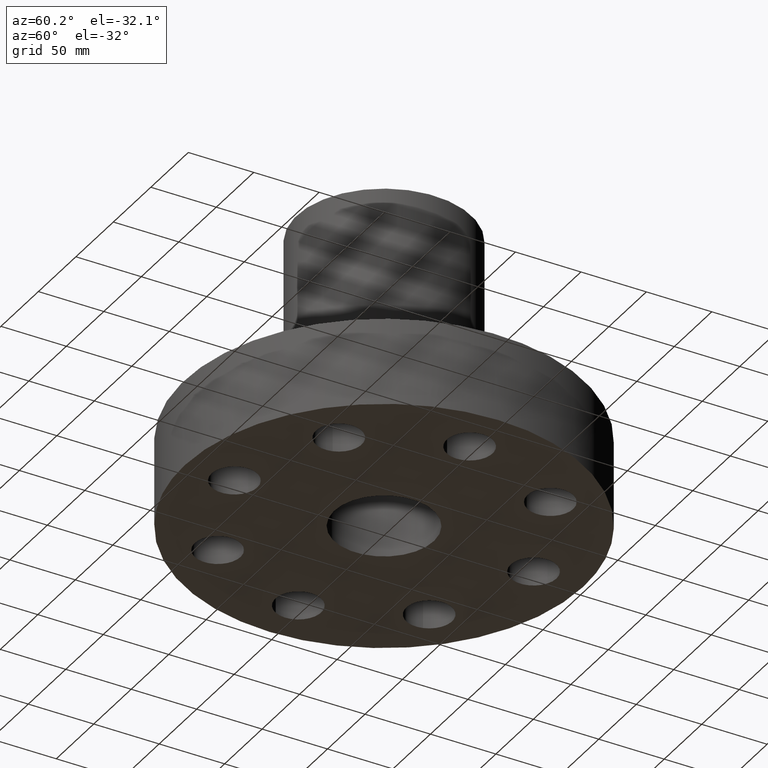
[diagram: clean part render]
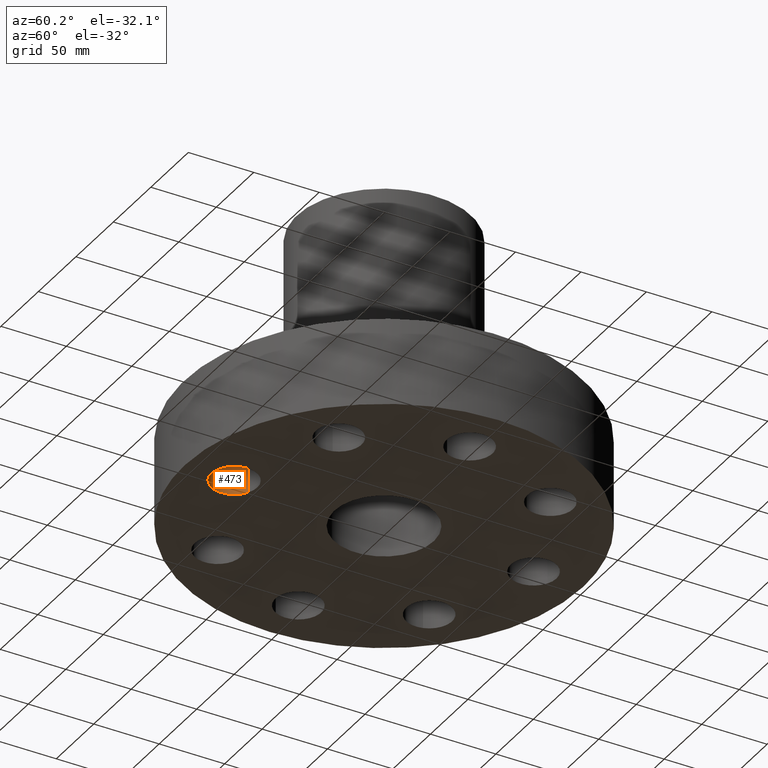
[diagram: same view with one face highlighted and labeled with its STEP entity id]
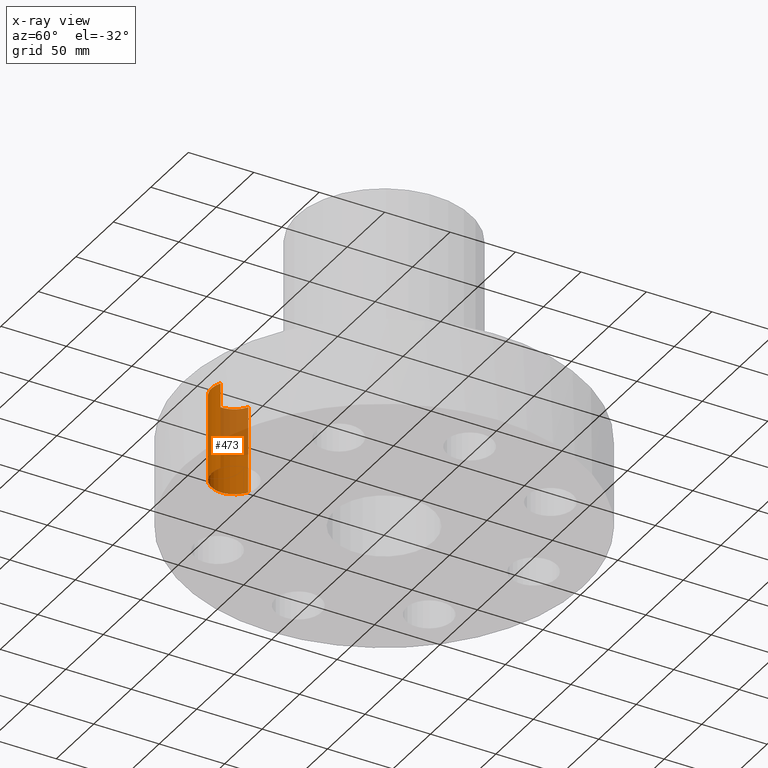
[diagram: x-ray of the same camera — body ghosted, the highlighted face saturated]
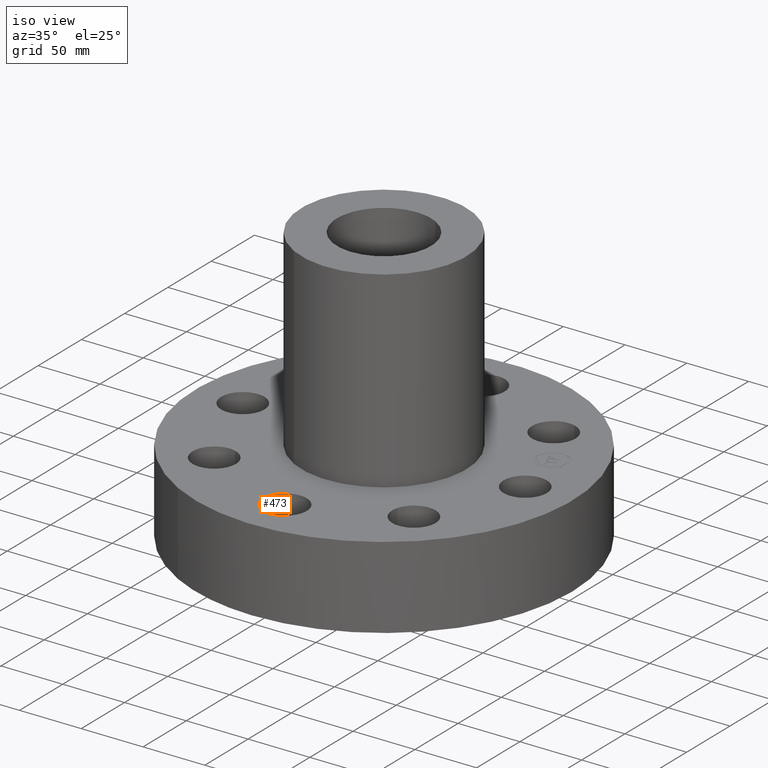
[diagram: same view with one face highlighted and labeled with its STEP entity id]
A machine part, auxiliary view. The second image highlights one B-rep face of the part: STEP entity #473.
The next image is the same camera in x-ray: the body ghosted, the highlighted face saturated — about 36% of this face is hidden behind the body in this view.
A second angle (iso view) of the same face is appended — the face is thin or edge-on in the first view.
In plain terms, the highlighted cylindrical surface (edge-blend (fillet) strip) has radius 17.526 mm, axis along (-0, 0, 1).
Its self-contained STEP definition (entity closure, byte-faithful):
#166=AXIS2_PLACEMENT_3D('Circle Axis2P3D',#164,#165,$) ;
#446=AXIS2_PLACEMENT_3D('Cylinder Axis2P3D',#443,#444,#445) ;
#464=AXIS2_PLACEMENT_3D('Circle Axis2P3D',#462,#463,$) ;
#159=CARTESIAN_POINT('Vertex',(-0.330803621638,-3.89446803231,2.62000000001)) ;
#161=CARTESIAN_POINT('Vertex',(0.330803621638,-5.10553196772,2.62000000001)) ;
#164=CARTESIAN_POINT('Axis2P3D Location',(7.69288395016E-016,-4.50000000002,2.62000000001)) ;
#443=CARTESIAN_POINT('Axis2P3D Location',(2.75545529809E-016,-4.50000000002,0.00393700787402)) ;
#448=CARTESIAN_POINT('Line Origine',(-0.330803621638,-3.89446803231,1.31000000001)) ;
#452=CARTESIAN_POINT('Vertex',(-0.330803621638,-3.89446803231,2.2401153548E-016)) ;
#455=CARTESIAN_POINT('Line Origine',(0.330803621638,-5.10553196772,1.31000000001)) ;
#459=CARTESIAN_POINT('Vertex',(0.330803621638,-5.10553196772,2.2401153548E-016)) ;
#462=CARTESIAN_POINT('Axis2P3D Location',(2.75545529809E-016,-4.50000000002,0.)) ;
#165=DIRECTION('Axis2P3D Direction',(0.,0.,-0.0393700787402)) ;
#444=DIRECTION('Axis2P3D Direction',(-0.,0.,0.0393700787402)) ;
#445=DIRECTION('Axis2P3D XDirection',(0.0188750212049,-0.0345504945626,0.)) ;
#449=DIRECTION('Vector Direction',(0.,0.,0.0393700787402)) ;
#456=DIRECTION('Vector Direction',(0.,0.,0.0393700787402)) ;
#463=DIRECTION('Axis2P3D Direction',(-0.,0.,0.0393700787402)) ;
#450=VECTOR('Line Direction',#449,0.0393700787402) ;
#457=VECTOR('Line Direction',#456,0.0393700787402) ;
#468=ORIENTED_EDGE('',*,*,#454,.F.) ;
#469=ORIENTED_EDGE('',*,*,#168,.F.) ;
#470=ORIENTED_EDGE('',*,*,#461,.T.) ;
#471=ORIENTED_EDGE('',*,*,#466,.T.) ;
#473=ADVANCED_FACE('PartBody',(#472),#447,.F.) ;
#167=CIRCLE('generated circle',#166,0.690000000003) ;
#465=CIRCLE('generated circle',#464,0.690000000003) ;
#447=CYLINDRICAL_SURFACE('generated cylinder',#446,0.690000000003) ;
#168=EDGE_CURVE('',#162,#160,#167,.T.) ;
#454=EDGE_CURVE('',#160,#453,#451,.F.) ;
#461=EDGE_CURVE('',#162,#460,#458,.F.) ;
#466=EDGE_CURVE('',#460,#453,#465,.F.) ;
#467=EDGE_LOOP('',(#468,#469,#470,#471)) ;
#472=FACE_OUTER_BOUND('',#467,.T.) ;
#451=LINE('Line',#448,#450) ;
#458=LINE('Line',#455,#457) ;
#160=VERTEX_POINT('',#159) ;
#162=VERTEX_POINT('',#161) ;
#453=VERTEX_POINT('',#452) ;
#460=VERTEX_POINT('',#459) ;